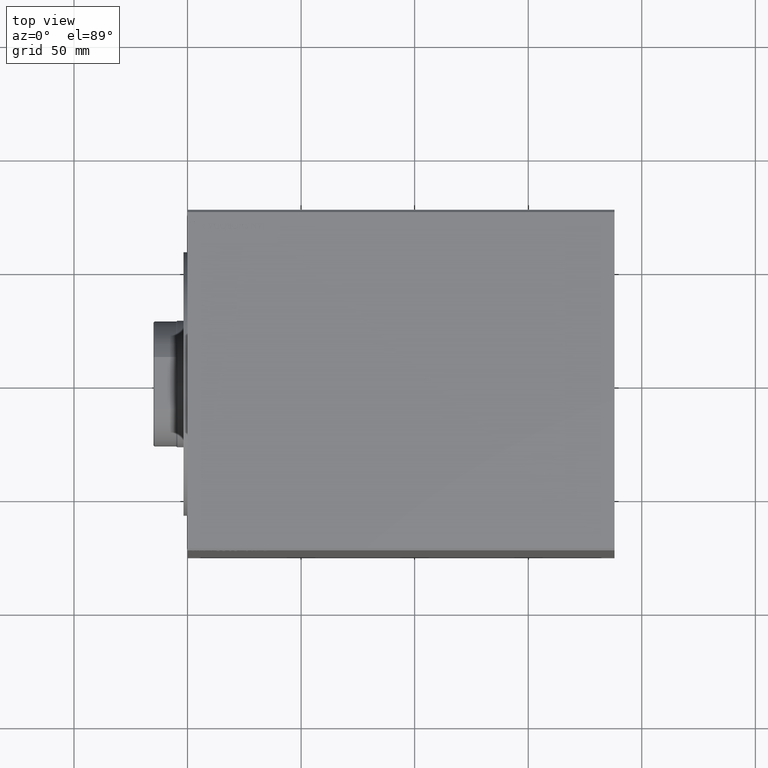
[diagram: clean part render]
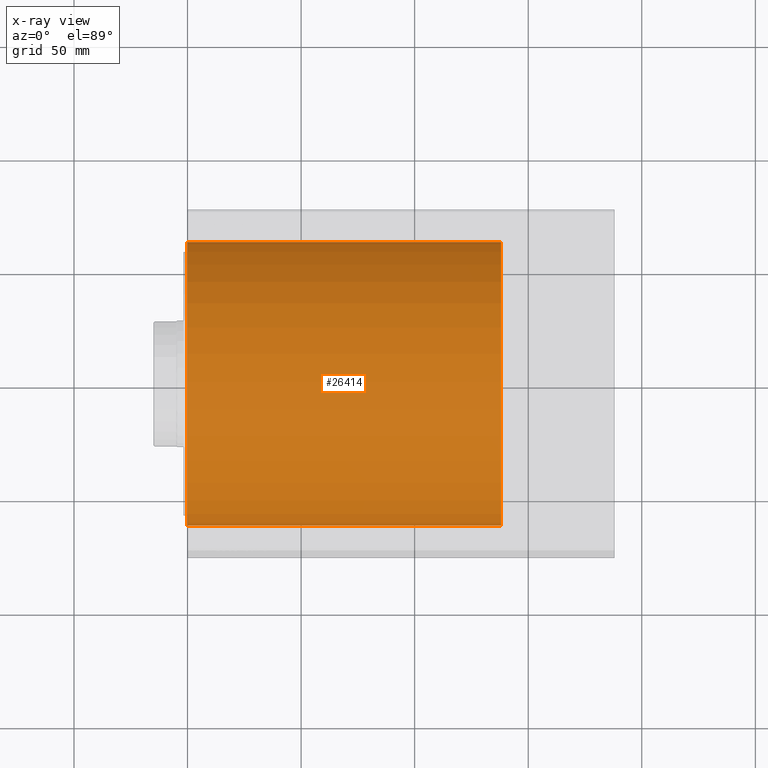
[diagram: x-ray — body ghosted, one internal face saturated and labeled with its STEP entity id]
A machine part, top view, then the same camera in x-ray: the body is ghosted and one INTERNAL B-rep face — a face not visible from any outside direction — is saturated and labeled: STEP entity #26414.
In plain terms, the highlighted cylindrical surface (partial cylindrical patch) has radius 62.5 mm, axis along (1, -0, 0).
Its self-contained STEP definition (entity closure, byte-faithful):
#1144 = EDGE_CURVE ( 'NONE', #12865, #6289, #8891, .T. ) ;
#1414 = ORIENTED_EDGE ( 'NONE', *, *, #18370, .F. ) ;
#2108 = VECTOR ( 'NONE', #8384, 1000.000000000000000 ) ;
#3830 = ORIENTED_EDGE ( 'NONE', *, *, #1144, .T. ) ;
#6289 = VERTEX_POINT ( 'NONE', #24257 ) ;
#6458 = AXIS2_PLACEMENT_3D ( 'NONE', #7882, #25427, #11428 ) ;
#7882 = CARTESIAN_POINT ( 'NONE',  ( 0.000000000000000000, 0.000000000000000000, 0.000000000000000000 ) ) ;
#8384 = DIRECTION ( 'NONE',  ( -0.000000000000000000, -0.000000000000000000, -1.000000000000000000 ) ) ;
#8891 = LINE ( 'NONE', #12227, #26668 ) ;
#10140 = VERTEX_POINT ( 'NONE', #32644 ) ;
#10717 = CIRCLE ( 'NONE', #6458, 62.50000000000000000 ) ;
#11113 = CYLINDRICAL_SURFACE ( 'NONE', #25631, 62.50000000000000000 ) ;
#11428 = DIRECTION ( 'NONE',  ( 1.000000000000000000, 0.000000000000000000, 0.000000000000000000 ) ) ;
#12227 = CARTESIAN_POINT ( 'NONE',  ( -62.50000000000000000, 0.000000000000000000, 138.0000000000000000 ) ) ;
#12865 = VERTEX_POINT ( 'NONE', #27177 ) ;
#14826 = CARTESIAN_POINT ( 'NONE',  ( 62.50000000000000000, 7.654042494670957804E-15, 138.0000000000000000 ) ) ;
#15088 = DIRECTION ( 'NONE',  ( -0.000000000000000000, -0.000000000000000000, -1.000000000000000000 ) ) ;
#15183 = ORIENTED_EDGE ( 'NONE', *, *, #16197, .F. ) ;
#15305 = CARTESIAN_POINT ( 'NONE',  ( 0.000000000000000000, 0.000000000000000000, 138.0000000000000000 ) ) ;
#16197 = EDGE_CURVE ( 'NONE', #10140, #42234, #39077, .T. ) ;
#17294 = CIRCLE ( 'NONE', #25136, 62.50000000000000000 ) ;
#18370 = EDGE_CURVE ( 'NONE', #12865, #10140, #17294, .T. ) ;
#18426 = DIRECTION ( 'NONE',  ( -1.000000000000000000, 0.000000000000000000, 0.000000000000000000 ) ) ;
#21434 = CARTESIAN_POINT ( 'NONE',  ( 0.000000000000000000, 0.000000000000000000, 138.0000000000000000 ) ) ;
#21550 = FACE_OUTER_BOUND ( 'NONE', #44014, .T. ) ;
#23756 = ORIENTED_EDGE ( 'NONE', *, *, #29695, .T. ) ;
#24257 = CARTESIAN_POINT ( 'NONE',  ( -62.50000000000000000, 0.000000000000000000, 0.000000000000000000 ) ) ;
#25136 = AXIS2_PLACEMENT_3D ( 'NONE', #21434, #41916, #35007 ) ;
#25427 = DIRECTION ( 'NONE',  ( 0.000000000000000000, 0.000000000000000000, 1.000000000000000000 ) ) ;
#25631 = AXIS2_PLACEMENT_3D ( 'NONE', #15305, #15088, #18426 ) ;
#26414 = ADVANCED_FACE ( 'NONE', ( #21550 ), #11113, .T. ) ;
#26668 = VECTOR ( 'NONE', #30009, 1000.000000000000000 ) ;
#27177 = CARTESIAN_POINT ( 'NONE',  ( -62.50000000000000000, 0.000000000000000000, 138.0000000000000000 ) ) ;
#29695 = EDGE_CURVE ( 'NONE', #6289, #42234, #10717, .T. ) ;
#30009 = DIRECTION ( 'NONE',  ( -0.000000000000000000, -0.000000000000000000, -1.000000000000000000 ) ) ;
#32644 = CARTESIAN_POINT ( 'NONE',  ( 62.50000000000000000, 7.654042494670957804E-15, 138.0000000000000000 ) ) ;
#35007 = DIRECTION ( 'NONE',  ( 1.000000000000000000, 0.000000000000000000, 0.000000000000000000 ) ) ;
#39077 = LINE ( 'NONE', #14826, #2108 ) ;
#40582 = CARTESIAN_POINT ( 'NONE',  ( 62.50000000000000000, 7.654042494670957804E-15, 0.000000000000000000 ) ) ;
#41916 = DIRECTION ( 'NONE',  ( 0.000000000000000000, 0.000000000000000000, 1.000000000000000000 ) ) ;
#42234 = VERTEX_POINT ( 'NONE', #40582 ) ;
#44014 = EDGE_LOOP ( 'NONE', ( #15183, #1414, #3830, #23756 ) ) ;